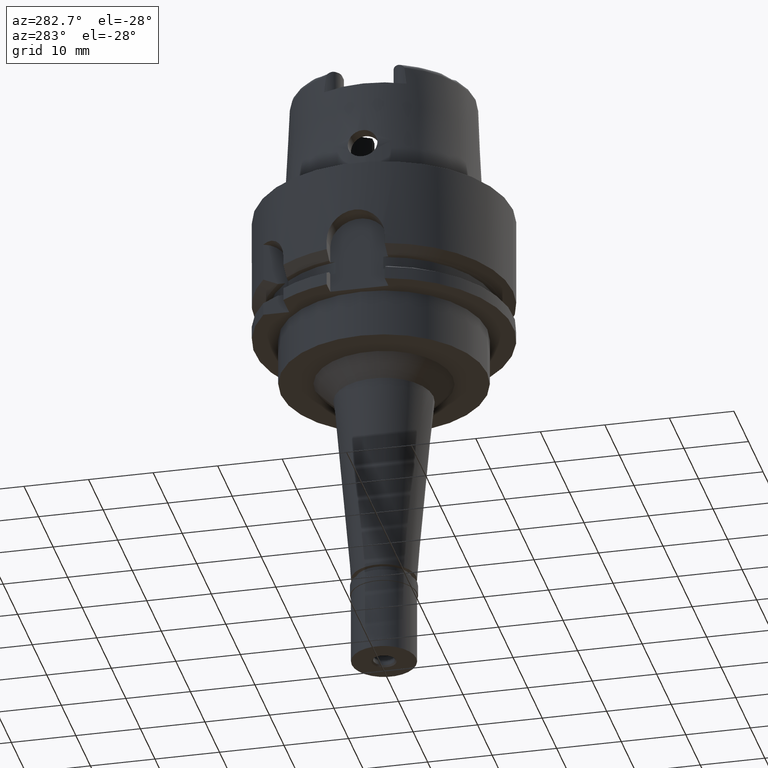
[diagram: clean part render]
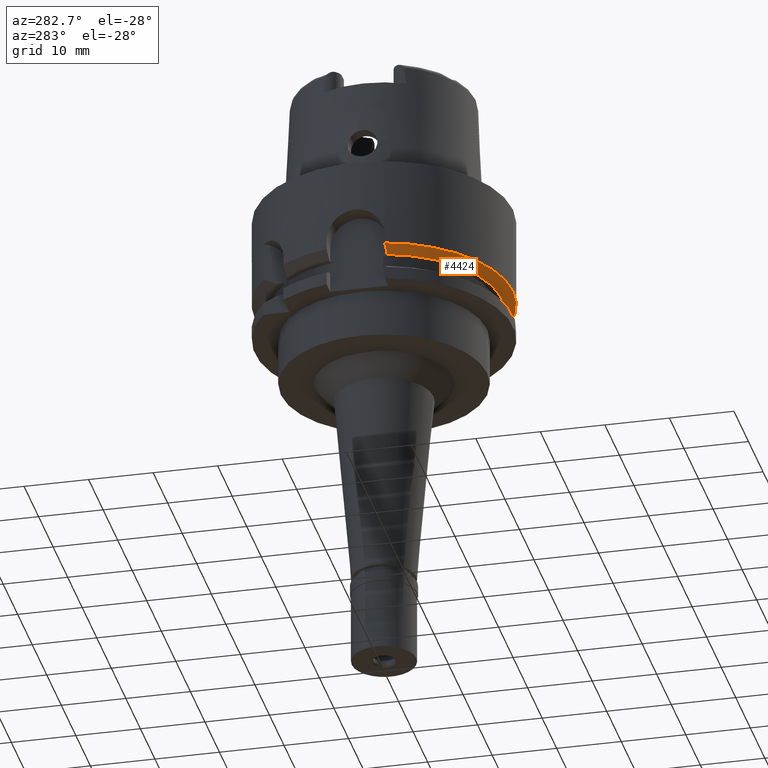
[diagram: same view with one face highlighted and labeled with its STEP entity id]
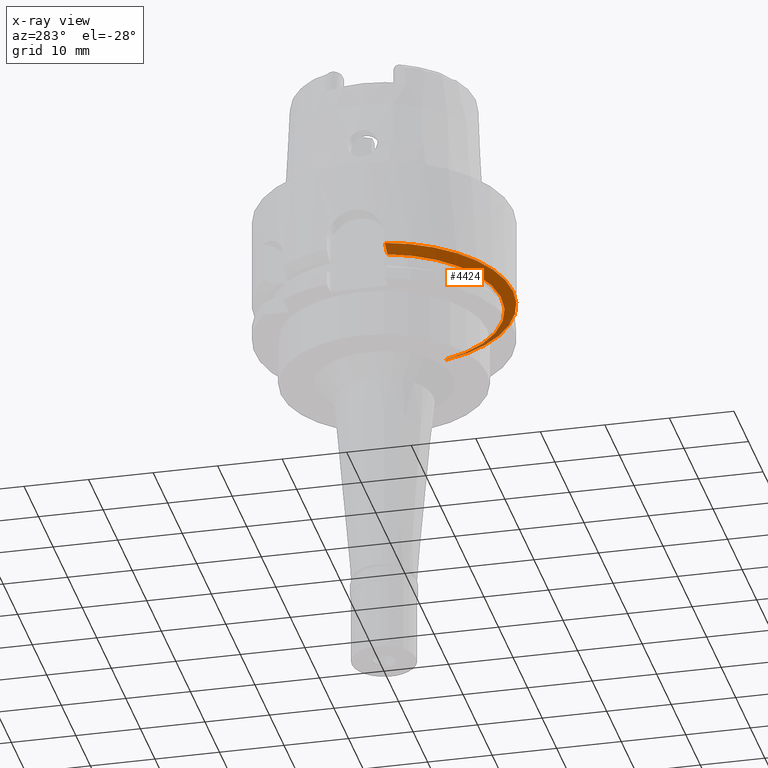
[diagram: x-ray of the same camera — body ghosted, the highlighted face saturated]
A machine part, auxiliary view. The second image highlights one B-rep face of the part: STEP entity #4424.
The next image is the same camera in x-ray: the body ghosted, the highlighted face saturated — about 8% of this face is hidden behind the body in this view.
In plain terms, the highlighted conical surface has half-angle 60 deg.
Its self-contained STEP definition (entity closure, byte-faithful):
#119 = DIRECTION ( 'NONE',  ( -0.9743587634952779464, -0.2249999999998949785, 0.0000000000000000000 ) ) ;
#200 = CIRCLE ( 'NONE', #284, 20.00000000000000355 ) ;
#255 = EDGE_CURVE ( 'NONE', #927, #850, #2584, .T. ) ;
#284 = AXIS2_PLACEMENT_3D ( 'NONE', #1783, #2136, #119 ) ;
#326 = CARTESIAN_POINT ( 'NONE',  ( -18.88128293145999947, -4.500000000000000000, -14.31992751062000124 ) ) ;
#399 = DIRECTION ( 'NONE',  ( 0.0000000000000000000, 1.000000000000000000, 0.0000000000000000000 ) ) ;
#406 = EDGE_CURVE ( 'NONE', #1966, #4977, #2077, .T. ) ;
#446 = AXIS2_PLACEMENT_3D ( 'NONE', #3719, #477, #399 ) ;
#477 = DIRECTION ( 'NONE',  ( 0.0000000000000000000, 0.0000000000000000000, 1.000000000000000000 ) ) ;
#850 = VERTEX_POINT ( 'NONE', #1961 ) ;
#927 = VERTEX_POINT ( 'NONE', #1822 ) ;
#991 = DIRECTION ( 'NONE',  ( 0.0000000000000000000, 0.0000000000000000000, 1.000000000000000000 ) ) ;
#1178 = EDGE_CURVE ( 'NONE', #850, #1966, #200, .T. ) ;
#1384 = DIRECTION ( 'NONE',  ( 0.0000000000000000000, -1.000000000000000000, 0.0000000000000000000 ) ) ;
#1553 = FACE_OUTER_BOUND ( 'NONE', #4654, .T. ) ;
#1561 = B_SPLINE_CURVE_WITH_KNOTS ( 'NONE', 3,
 ( #3766, #2948, #1687, #2094 ),
 .UNSPECIFIED., .F., .F.,
 ( 4, 4 ),
 ( 0.0000000000000000000, 1.000000000000000000 ),
 .UNSPECIFIED. ) ;
#1563 = CIRCLE ( 'NONE', #3864, 18.23205080757000118 ) ;
#1687 = CARTESIAN_POINT ( 'NONE',  ( 18.58583610704789635, -5.500000964738205766, -14.33622370055881312 ) ) ;
#1735 = CARTESIAN_POINT ( 'NONE',  ( 19.22888452303000051, -5.499999999998999911, -13.97927405783999966 ) ) ;
#1783 = CARTESIAN_POINT ( 'NONE',  ( 0.0000000000000000000, 1.047199923064999921E-14, -13.97927405783999966 ) ) ;
#1787 = ORIENTED_EDGE ( 'NONE', *, *, #4432, .T. ) ;
#1822 = CARTESIAN_POINT ( 'NONE',  ( -17.66798451012000370, -4.500000000000000000, -15.00000000000000000 ) ) ;
#1884 = ORIENTED_EDGE ( 'NONE', *, *, #3782, .T. ) ;
#1961 = CARTESIAN_POINT ( 'NONE',  ( -19.48717526991000071, -4.499999999998999911, -13.97927405783999966 ) ) ;
#1966 = VERTEX_POINT ( 'NONE', #3621 ) ;
#2077 = CIRCLE ( 'NONE', #2586, 20.00000000000000000 ) ;
#2094 = CARTESIAN_POINT ( 'NONE',  ( 19.22888452303000051, -5.499999999998999911, -13.97927405783999966 ) ) ;
#2136 = DIRECTION ( 'NONE',  ( 0.0000000000000000000, 0.0000000000000000000, 1.000000000000000000 ) ) ;
#2251 = CARTESIAN_POINT ( 'NONE',  ( 0.0000000000000000000, 1.047199923064999921E-14, -13.97927405783999966 ) ) ;
#2584 = B_SPLINE_CURVE_WITH_KNOTS ( 'NONE', 3,
 ( #4740, #4413, #3992, #326, #2753, #5114 ),
 .UNSPECIFIED., .F., .F.,
 ( 4, 1, 1, 4 ),
 ( 0.0000000000000000000, 0.3333333333333000081, 0.6666666666667000474, 1.000000000000000000 ),
 .UNSPECIFIED. ) ;
#2586 = AXIS2_PLACEMENT_3D ( 'NONE', #2251, #991, #1384 ) ;
#2753 = CARTESIAN_POINT ( 'NONE',  ( -19.28525784598000214, -4.499999999998999911, -14.09286195644000017 ) ) ;
#2948 = CARTESIAN_POINT ( 'NONE',  ( 17.97044156531167403, -5.500000298575444369, -14.67646630393576324 ) ) ;
#3351 = CARTESIAN_POINT ( 'NONE',  ( 0.0000000000000000000, 1.047199923064999921E-14, -15.00000000000000000 ) ) ;
#3613 = CONICAL_SURFACE ( 'NONE', #446, 19.11602540378000015, 1.047197551196400456 ) ;
#3621 = CARTESIAN_POINT ( 'NONE',  ( 0.0000000000000000000, -20.00000000000000000, -13.97927405783999966 ) ) ;
#3719 = CARTESIAN_POINT ( 'NONE',  ( 0.0000000000000000000, 1.047199923064999921E-14, -14.48963702891999894 ) ) ;
#3766 = CARTESIAN_POINT ( 'NONE',  ( 17.38268324078999783, -5.500000000000000000, -15.00000000000000000 ) ) ;
#3782 = EDGE_CURVE ( 'NONE', #4760, #4977, #1561, .T. ) ;
#3819 = ORIENTED_EDGE ( 'NONE', *, *, #1178, .F. ) ;
#3864 = AXIS2_PLACEMENT_3D ( 'NONE', #3351, #4930, #4850 ) ;
#3901 = CARTESIAN_POINT ( 'NONE',  ( 17.38268324078999783, -5.500000000000000000, -15.00000000000000000 ) ) ;
#3992 = CARTESIAN_POINT ( 'NONE',  ( -18.27489697170000227, -4.500000000000000000, -14.66019060122999917 ) ) ;
#4413 = CARTESIAN_POINT ( 'NONE',  ( -17.87034388036000010, -4.500000000000000000, -14.88678233879000068 ) ) ;
#4424 = ADVANCED_FACE ( 'NONE', ( #1553 ), #3613, .T. ) ;
#4432 = EDGE_CURVE ( 'NONE', #927, #4760, #1563, .T. ) ;
#4654 = EDGE_LOOP ( 'NONE', ( #5170, #1787, #1884, #5260, #3819 ) ) ;
#4740 = CARTESIAN_POINT ( 'NONE',  ( -17.66798451012000370, -4.500000000000000000, -15.00000000000000000 ) ) ;
#4760 = VERTEX_POINT ( 'NONE', #3901 ) ;
#4850 = DIRECTION ( 'NONE',  ( 0.0000000000000000000, -1.000000000000000000, 0.0000000000000000000 ) ) ;
#4930 = DIRECTION ( 'NONE',  ( 0.0000000000000000000, 0.0000000000000000000, 1.000000000000000000 ) ) ;
#4977 = VERTEX_POINT ( 'NONE', #1735 ) ;
#5114 = CARTESIAN_POINT ( 'NONE',  ( -19.48717526991000071, -4.499999999998999911, -13.97927405783999966 ) ) ;
#5170 = ORIENTED_EDGE ( 'NONE', *, *, #255, .F. ) ;
#5260 = ORIENTED_EDGE ( 'NONE', *, *, #406, .F. ) ;